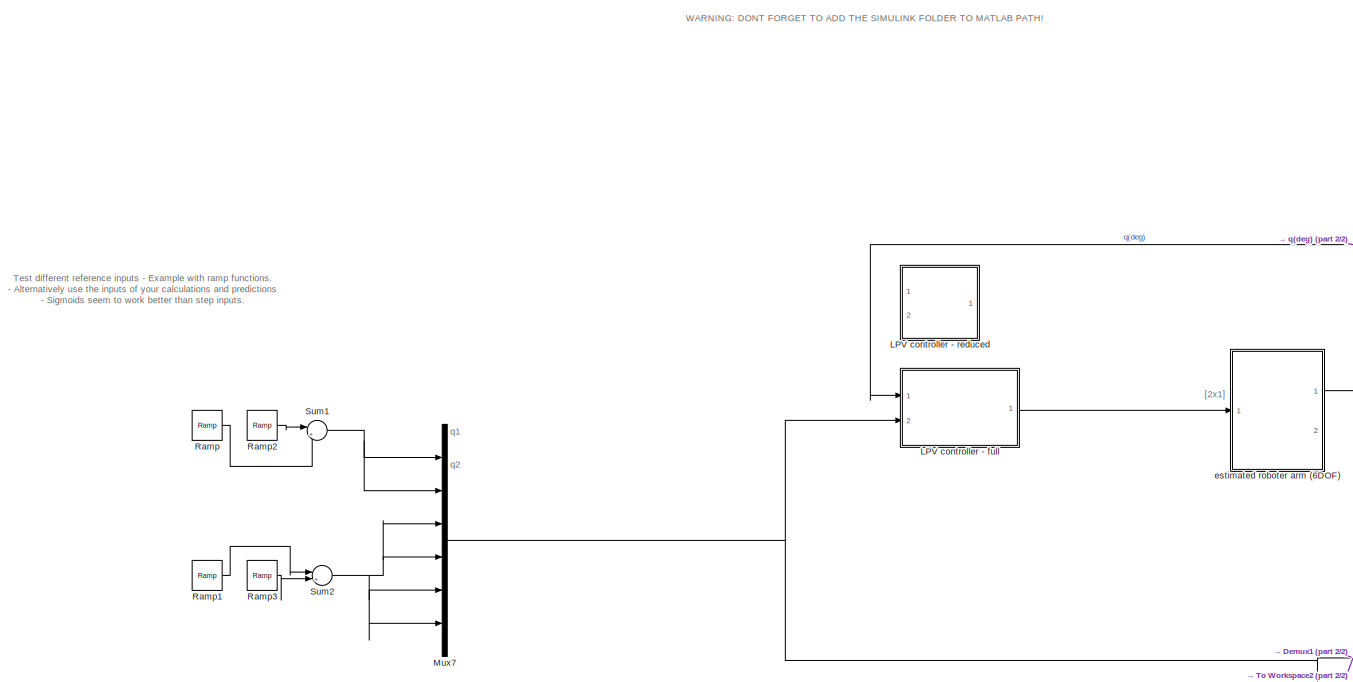
[diagram: root canvas - part 1/2, central region]
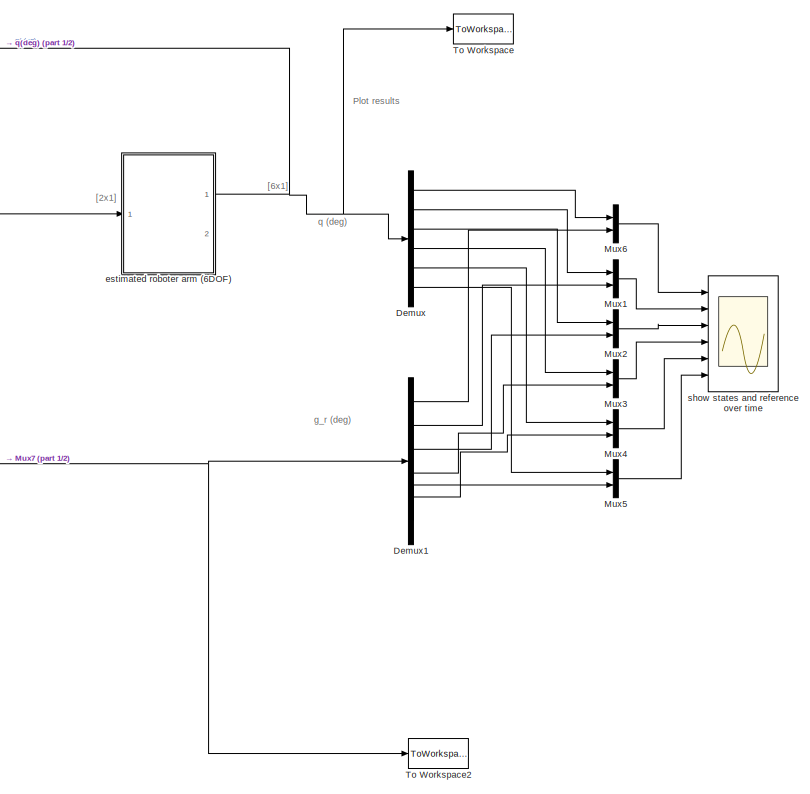
[diagram: root canvas - part 2/2, right side, full height]
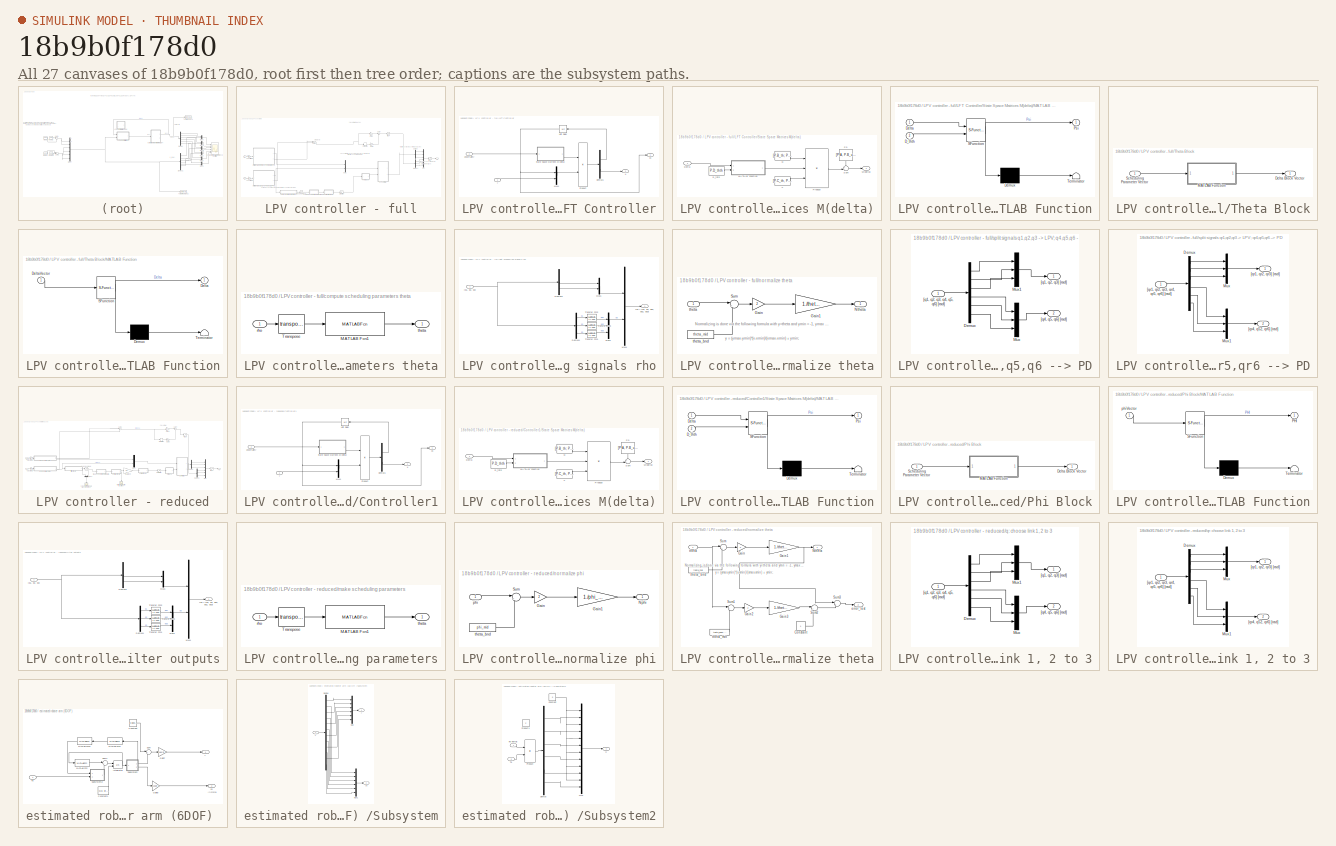
[diagram: thumbnail index - all 27 canvases of the model, root first then tree order]
MODEL slx_18b9b0f178d0
KIND model
CONFIG AbsTol = auto
CONFIG FixedStep = 0.001
CONFIG MaxStep = auto
CONFIG MinStep = auto
CONFIG RelTol = 1e-3
CONFIG SampleTimeConstraint = Unconstrained
CONFIG Solver = ode1
CONFIG SolverMode = Auto
CONFIG SolverName = ode1
CONFIG StartTime = 0.0
CONFIG StopTime = 1.5
BLOCK [Demux] Demux
  DisplayOption = bar
  Outputs = 6
  Ports = [1, 6]
BLOCK [Demux] Demux1
  DisplayOption = bar
  Outputs = 6
  Ports = [1, 6]
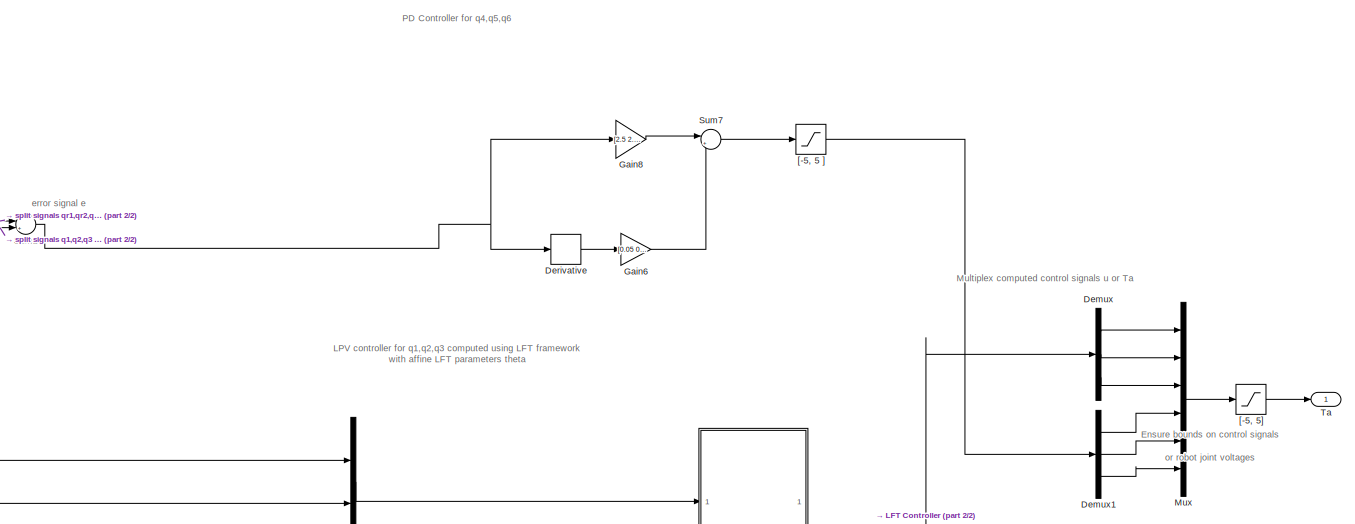
[diagram: LPV controller - full - part 1/2, middle right region]
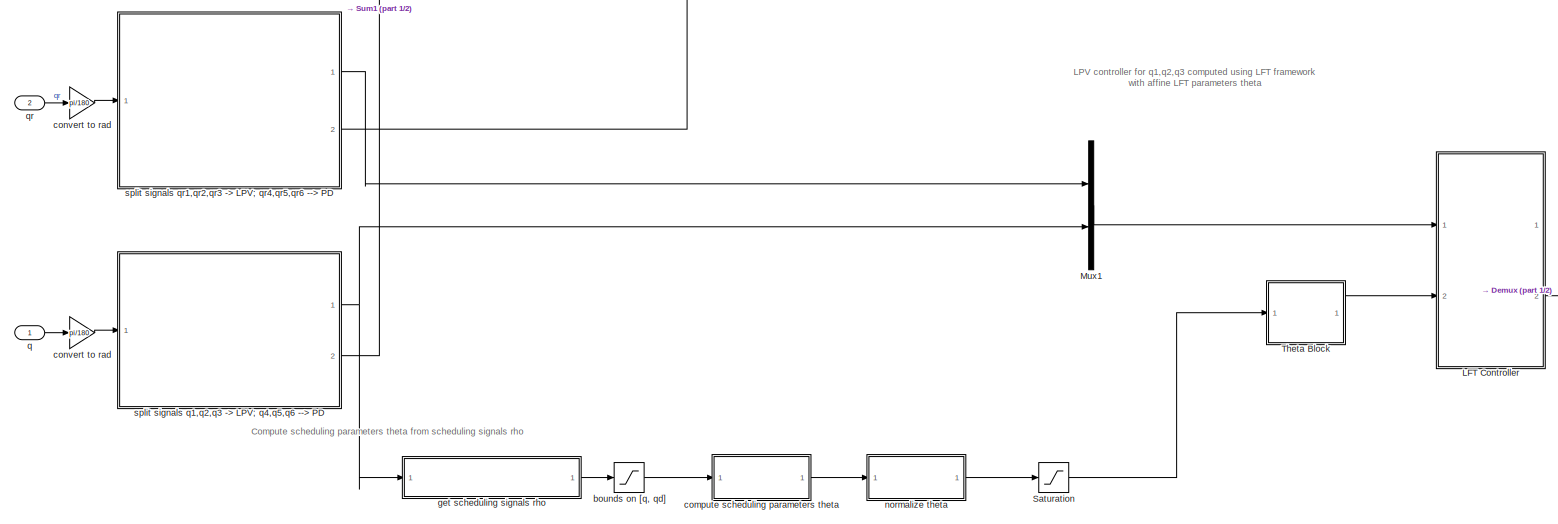
[diagram: LPV controller - full - part 2/2, full width, bottom band]
BLOCK [SubSystem] LPV controller - full
  Ports = [2, 1]
  RequestExecContextInheritance = off
BLOCK [Demux] LPV controller - full/Demux
  DisplayOption = bar
  Outputs = 3
  Ports = [1, 3]
BLOCK [Demux] LPV controller - full/Demux1
  DisplayOption = bar
  Outputs = 3
  Ports = [1, 3]
BLOCK [Derivative] LPV controller - full/Derivative
BLOCK [Gain] LPV controller - full/Gain6
  AttributesFormatString = D gain
  Gain = [0.05 0.05 0.05]*180/pi
  OutDataTypeStr = Inherit: Inherit via internal rule
  ParamDataTypeStr = Inherit: Inherit via internal rule
  SaturateOnIntegerOverflow = off
BLOCK [Gain] LPV controller - full/Gain8
  AttributesFormatString = P gain
  Gain = [2.5 2.5 2.5]*180/pi
  OutDataTypeStr = Inherit: Inherit via internal rule
  ParamDataTypeStr = Inherit: Inherit via internal rule
  SaturateOnIntegerOverflow = off
BLOCK [SubSystem] LPV controller - full/LFT Controller
  Ports = [2, 2]
  RequestExecContextInheritance = off
BLOCK [Demux] LPV controller - full/LFT Controller/Demux1
  DisplayOption = bar
  Outputs = [size(P.A, 1); size(P.C_y, 1)]
  Ports = [1, 2]
BLOCK [Mux] LPV controller - full/LFT Controller/Mux1
  DisplayOption = bar
  Inputs = 2
  Ports = [2, 1]
BLOCK [Product] LPV controller - full/LFT Controller/Product
  InputSameDT = off
  Multiplication = Matrix(*)
  OutDataTypeStr = Inherit: Inherit via internal rule
  Ports = [2, 1]
  SaturateOnIntegerOverflow = off
BLOCK [SubSystem] LPV controller - full/LFT Controller/State Space Matrices M(delta)
  Ports = [1, 1]
  RequestExecContextInheritance = off
BLOCK [Constant] LPV controller - full/LFT Controller/State Space Matrices M(delta)/D_thth
  Value = P.D_thth
BLOCK [Inport] LPV controller - full/LFT Controller/State Space Matrices M(delta)/Delta
  IconDisplay = Port number
BLOCK [Outport] LPV controller - full/LFT Controller/State Space Matrices M(delta)/M(delta)
  IconDisplay = Port number
BLOCK [SubSystem] LPV controller - full/LFT Controller/State Space Matrices M(delta)/MATLAB Function
  ErrorFcn = Stateflow.Translate.translate
  PermitHierarchicalResolution = ExplicitOnly
  Ports = [2, 1]
  RequestExecContextInheritance = off
  SFBlockType = MATLAB Function
  TreatAsAtomicUnit = on
BLOCK [Demux] LPV controller - full/LFT Controller/State Space Matrices M(delta)/MATLAB Function/ Demux 
  Outputs = 1
  Ports = [1, 1]
BLOCK [S-Function] LPV controller - full/LFT Controller/State Space Matrices M(delta)/MATLAB Function/ SFunction 
  EnableBusSupport = on
  FunctionName = sf_sfun
  PortCounts = [2 2]
  Ports = [2, 2]
  Tag = Stateflow S-Function LPV_controller_Simulation_6DOF 1
BLOCK [Terminator] LPV controller - full/LFT Controller/State Space Matrices M(delta)/MATLAB Function/ Terminator 
BLOCK [Inport] LPV controller - full/LFT Controller/State Space Matrices M(delta)/MATLAB Function/D_thth
  IconDisplay = Port number
  Port = 2
BLOCK [Inport] LPV controller - full/LFT Controller/State Space Matrices M(delta)/MATLAB Function/Delta
  IconDisplay = Port number
BLOCK [Outport] LPV controller - full/LFT Controller/State Space Matrices M(delta)/MATLAB Function/Psi
  IconDisplay = Port number
BLOCK [Constant] LPV controller - full/LFT Controller/State Space Matrices M(delta)/P0
  Value = [P.A, P.B_u; P.C_y, P.D_yu];
  VectorParams1D = off
BLOCK [Product] LPV controller - full/LFT Controller/State Space Matrices M(delta)/Product
  InputSameDT = off
  Inputs = 3
  Multiplication = Matrix(*)
  OutDataTypeStr = Inherit: Inherit via internal rule
  Ports = [3, 1]
  SaturateOnIntegerOverflow = off
BLOCK [Constant] LPV controller - full/LFT Controller/State Space Matrices M(delta)/Q
  Value = [P.B_th; P.D_yth]
BLOCK [Sum] LPV controller - full/LFT Controller/State Space Matrices M(delta)/Sum
  IconShape = round
  InputSameDT = off
  Inputs = ++|
  OutDataTypeStr = Inherit: Inherit via internal rule
  Ports = [2, 1]
  SaturateOnIntegerOverflow = off
BLOCK [Constant] LPV controller - full/LFT Controller/State Space Matrices M(delta)/V
  Value = [P.C_th, P.D_thu ]
  VectorParams1D = off
BLOCK [UnitDelay] LPV controller - full/LFT Controller/Unit Delay
  InputProcessing = Elements as channels (sample based)
  SampleTime = -1
BLOCK [Outport] LPV controller - full/LFT Controller/u
  IconDisplay = Port number
  Port = 2
BLOCK [Inport] LPV controller - full/LFT Controller/uncertainty
  IconDisplay = Port number
  Port = 2
BLOCK [Outport] LPV controller - full/LFT Controller/xk
  IconDisplay = Port number
BLOCK [Inport] LPV controller - full/LFT Controller/y
  IconDisplay = Port number
BLOCK [Mux] LPV controller - full/Mux
  DisplayOption = bar
  Inputs = 6
  Ports = [6, 1]
BLOCK [Mux] LPV controller - full/Mux1
  DisplayOption = bar
  Inputs = 2
  Ports = [2, 1]
BLOCK [Saturate] LPV controller - full/Saturation
  InputPortMap = u0
  LowerLimit = -1
  Ports = [1, 1]
  UpperLimit = 1
BLOCK [Sum] LPV controller - full/Sum1
  IconShape = round
  InputSameDT = off
  Inputs = |+-
  OutDataTypeStr = Inherit: Inherit via internal rule
  Ports = [2, 1]
  SaturateOnIntegerOverflow = off
BLOCK [Sum] LPV controller - full/Sum7
  IconShape = round
  InputSameDT = off
  Inputs = |++
  OutDataTypeStr = Inherit: Inherit via internal rule
  Ports = [2, 1]
  SaturateOnIntegerOverflow = off
BLOCK [Outport] LPV controller - full/Ta
  IconDisplay = Port number
BLOCK [SubSystem] LPV controller - full/Theta Block
  Ports = [1, 1]
  RequestExecContextInheritance = off
BLOCK [Outport] LPV controller - full/Theta Block/Delta Block Vector
  IconDisplay = Port number
BLOCK [SubSystem] LPV controller - full/Theta Block/MATLAB Function
  ErrorFcn = Stateflow.Translate.translate
  PermitHierarchicalResolution = ExplicitOnly
  Ports = [1, 1]
  RequestExecContextInheritance = off
  SFBlockType = MATLAB Function
  TreatAsAtomicUnit = on
BLOCK [Demux] LPV controller - full/Theta Block/MATLAB Function/ Demux 
  Outputs = 1
  Ports = [1, 1]
BLOCK [S-Function] LPV controller - full/Theta Block/MATLAB Function/ SFunction 
  EnableBusSupport = on
  FunctionName = sf_sfun
  PortCounts = [1 2]
  Ports = [1, 2]
  Tag = Stateflow S-Function LPV_controller_Simulation_6DOF 3
BLOCK [Terminator] LPV controller - full/Theta Block/MATLAB Function/ Terminator 
BLOCK [Outport] LPV controller - full/Theta Block/MATLAB Function/Delta
  IconDisplay = Port number
BLOCK [Inport] LPV controller - full/Theta Block/MATLAB Function/DeltaVector
  IconDisplay = Port number
BLOCK [Inport] LPV controller - full/Theta Block/Scheduling Parameter Vector
  IconDisplay = Port number
BLOCK [Saturate] LPV controller - full/[-5, 5 ]
  InputPortMap = u0
  LowerLimit = -5
  Ports = [1, 1]
  UpperLimit = 5
BLOCK [Saturate] LPV controller - full/[-5, 5]
  InputPortMap = u0
  LowerLimit = -5
  Ports = [1, 1]
  UpperLimit = 5
BLOCK [Saturate] LPV controller - full/bounds on [q, qd]
  InputPortMap = u0
  LowerLimit = rho_bnd(:, 1)
  Ports = [1, 1]
  UpperLimit = rho_bnd(:, 2)
BLOCK [SubSystem] LPV controller - full/compute scheduling parameters theta
  Ports = [1, 1]
  RequestExecContextInheritance = off
BLOCK [MATLABFcn] LPV controller - full/compute scheduling parameters theta/MATLAB Fcn1
  MATLABFcn = robot3DOFaffineLPVparams(u)
  Output1D = off
  Ports = [1, 1]
BLOCK [Math] LPV controller - full/compute scheduling parameters theta/Transpose
  Operator = transpose
  Ports = [1, 1]
BLOCK [Inport] LPV controller - full/compute scheduling parameters theta/rho
  IconDisplay = Port number
BLOCK [Outport] LPV controller - full/compute scheduling parameters theta/theta
  IconDisplay = Port number
BLOCK [Gain] LPV controller - full/convert to rad
  Gain = pi/180
  OutDataTypeStr = Inherit: Inherit via internal rule
  ParamDataTypeStr = Inherit: Inherit via internal rule
  SaturateOnIntegerOverflow = off
BLOCK [SubSystem] LPV controller - full/get scheduling signals rho
  Ports = [1, 1]
  RequestExecContextInheritance = off
BLOCK [Demux] LPV controller - full/get scheduling signals rho/Demux1
  DisplayOption = bar
  Outputs = 3
  Ports = [1, 3]
BLOCK [Demux] LPV controller - full/get scheduling signals rho/Demux2
  DisplayOption = bar
  Outputs = 3
  Ports = [1, 3]
BLOCK [Mux] LPV controller - full/get scheduling signals rho/Mux1
  DisplayOption = bar
  Inputs = 2
  Ports = [2, 1]
BLOCK [Mux] LPV controller - full/get scheduling signals rho/Mux2
  DisplayOption = bar
  Inputs = 3
  Ports = [3, 1]
BLOCK [Mux] LPV controller - full/get scheduling signals rho/Mux4
  DisplayOption = bar
  Inputs = 2
  Ports = [2, 1]
BLOCK [TransferFcn] LPV controller - full/get scheduling signals rho/Transfer Fcn1
  Denominator = [1 100]
  Numerator = [100 0]
BLOCK [TransferFcn] LPV controller - full/get scheduling signals rho/Transfer Fcn2
  Denominator = [1 100]
  Numerator = [100 0]
BLOCK [TransferFcn] LPV controller - full/get scheduling signals rho/Transfer Fcn3
  Denominator = [1 100]
  Numerator = [100 0]
BLOCK [Inport] LPV controller - full/get scheduling signals rho/[q1, q2, q3]
  IconDisplay = Port number
BLOCK [Outport] LPV controller - full/get scheduling signals rho/rho = [q2, q3, dq1, dq2, dq3]
  IconDisplay = Port number
BLOCK [SubSystem] LPV controller - full/normalize theta
  Ports = [1, 1]
  RequestExecContextInheritance = off
BLOCK [Gain] LPV controller - full/normalize theta/Gain
  Gain = 2
  OutDataTypeStr = Inherit: Inherit via internal rule
  ParamDataTypeStr = Inherit: Inherit via internal rule
  SaturateOnIntegerOverflow = off
BLOCK [Gain] LPV controller - full/normalize theta/Gain1
  Gain = 1./theta_range
  OutDataTypeStr = Inherit: Inherit via internal rule
  ParamDataTypeStr = Inherit: Inherit via internal rule
  SaturateOnIntegerOverflow = off
BLOCK [Outport] LPV controller - full/normalize theta/Ntheta
  IconDisplay = Port number
BLOCK [Sum] LPV controller - full/normalize theta/Sum
  IconShape = round
  InputSameDT = off
  Inputs = |+-
  OutDataTypeStr = Inherit: Inherit via internal rule
  Ports = [2, 1]
  SaturateOnIntegerOverflow = off
BLOCK [Inport] LPV controller - full/normalize theta/theta
  IconDisplay = Port number
BLOCK [Constant] LPV controller - full/normalize theta/theta_bnd
  Value = theta_mid
BLOCK [Inport] LPV controller - full/q
  IconDisplay = Port number
BLOCK [Inport] LPV controller - full/qr
  IconDisplay = Port number
  Port = 2
BLOCK [SubSystem] LPV controller - full/split signals q1,q2,q3 -> LPV; q4,q5,q6 --> PD
  Ports = [1, 2]
  RequestExecContextInheritance = off
BLOCK [Demux] LPV controller - full/split signals q1,q2,q3 -> LPV; q4,q5,q6 --> PD/Demux
  DisplayOption = bar
  Outputs = 6
  Ports = [1, 6]
BLOCK [Mux] LPV controller - full/split signals q1,q2,q3 -> LPV; q4,q5,q6 --> PD/Mux
  DisplayOption = bar
  Inputs = 3
  Ports = [3, 1]
BLOCK [Mux] LPV controller - full/split signals q1,q2,q3 -> LPV; q4,q5,q6 --> PD/Mux1
  DisplayOption = bar
  Inputs = 3
  Ports = [3, 1]
BLOCK [Inport] LPV controller - full/split signals q1,q2,q3 -> LPV; q4,q5,q6 --> PD/[q1, q2, q3, q4, q5, q6] [rad]
  IconDisplay = Port number
BLOCK [Outport] LPV controller - full/split signals q1,q2,q3 -> LPV; q4,q5,q6 --> PD/[q1, q2, q3] [rad]
  IconDisplay = Port number
BLOCK [Outport] LPV controller - full/split signals q1,q2,q3 -> LPV; q4,q5,q6 --> PD/[q4, q5, q6] [rad]
  IconDisplay = Port number
  Port = 2
BLOCK [SubSystem] LPV controller - full/split signals qr1,qr2,qr3 -> LPV; qr4,qr5,qr6 --> PD
  Ports = [1, 2]
  RequestExecContextInheritance = off
BLOCK [Demux] LPV controller - full/split signals qr1,qr2,qr3 -> LPV; qr4,qr5,qr6 --> PD/Demux
  DisplayOption = bar
  Outputs = 6
  Ports = [1, 6]
BLOCK [Mux] LPV controller - full/split signals qr1,qr2,qr3 -> LPV; qr4,qr5,qr6 --> PD/Mux
  DisplayOption = bar
  Inputs = 3
  Ports = [3, 1]
BLOCK [Mux] LPV controller - full/split signals qr1,qr2,qr3 -> LPV; qr4,qr5,qr6 --> PD/Mux1
  DisplayOption = bar
  Inputs = 3
  Ports = [3, 1]
BLOCK [Inport] LPV controller - full/split signals qr1,qr2,qr3 -> LPV; qr4,qr5,qr6 --> PD/[qr1, qr2, qr3, qr4, qr5, qr6] [rad]
  IconDisplay = Port number
BLOCK [Outport] LPV controller - full/split signals qr1,qr2,qr3 -> LPV; qr4,qr5,qr6 --> PD/[qr1, qr2, qr3] [rad]
  IconDisplay = Port number
BLOCK [Outport] LPV controller - full/split signals qr1,qr2,qr3 -> LPV; qr4,qr5,qr6 --> PD/[qr4, q52, qr6] [rad]
  IconDisplay = Port number
  Port = 2
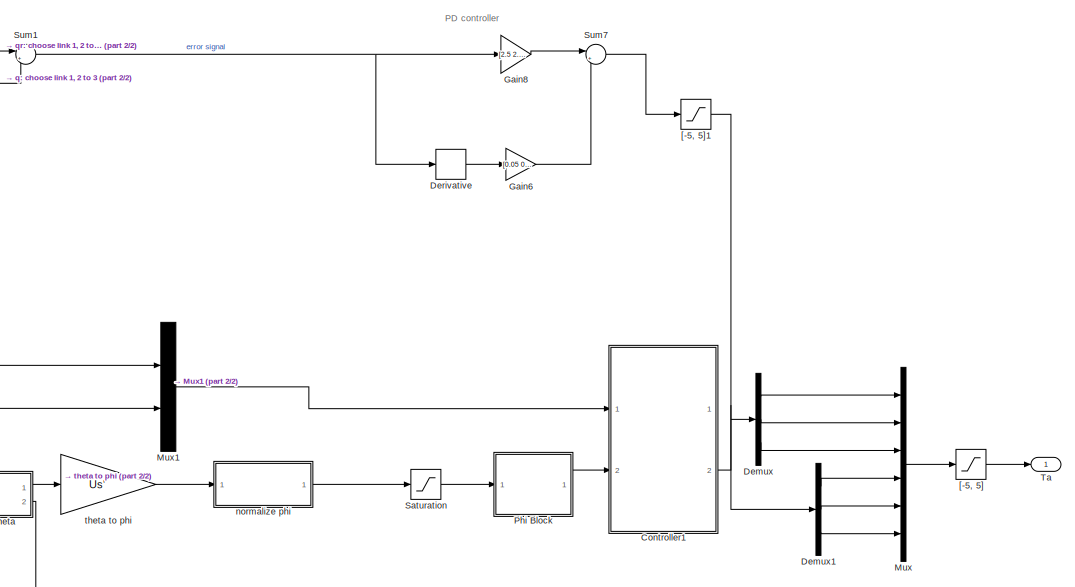
[diagram: LPV controller - reduced - part 1/2, right side, full height]
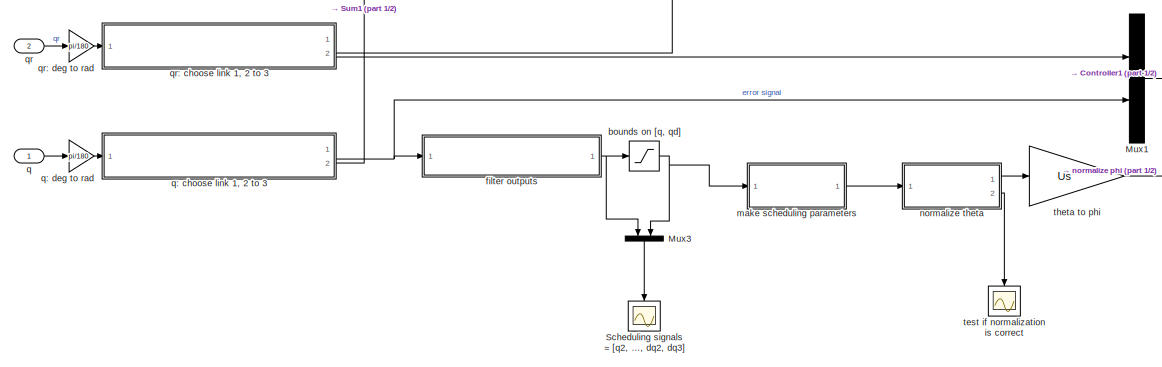
[diagram: LPV controller - reduced - part 2/2, bottom left region]
BLOCK [SubSystem] LPV controller - reduced
  Commented = on
  Ports = [2, 1]
  RequestExecContextInheritance = off
BLOCK [SubSystem] LPV controller - reduced/Controller1
  Ports = [2, 2]
  RequestExecContextInheritance = off
BLOCK [Demux] LPV controller - reduced/Controller1/Demux1
  DisplayOption = bar
  Outputs = [size(P.A, 1); size(P.C_y, 1)]
  Ports = [1, 2]
BLOCK [Mux] LPV controller - reduced/Controller1/Mux1
  DisplayOption = bar
  Inputs = 2
  Ports = [2, 1]
BLOCK [Product] LPV controller - reduced/Controller1/Product
  InputSameDT = off
  Multiplication = Matrix(*)
  OutDataTypeStr = Inherit: Inherit via internal rule
  Ports = [2, 1]
  SaturateOnIntegerOverflow = off
BLOCK [SubSystem] LPV controller - reduced/Controller1/State Space Matrices M(delta)
  Ports = [1, 1]
  RequestExecContextInheritance = off
BLOCK [Constant] LPV controller - reduced/Controller1/State Space Matrices M(delta)/D_thth
  Value = P.D_thth
BLOCK [Inport] LPV controller - reduced/Controller1/State Space Matrices M(delta)/Delta
  IconDisplay = Port number
BLOCK [Outport] LPV controller - reduced/Controller1/State Space Matrices M(delta)/M(delta)
  IconDisplay = Port number
BLOCK [SubSystem] LPV controller - reduced/Controller1/State Space Matrices M(delta)/MATLAB Function
  ErrorFcn = Stateflow.Translate.translate
  PermitHierarchicalResolution = ExplicitOnly
  Ports = [2, 1]
  RequestExecContextInheritance = off
  SFBlockType = MATLAB Function
  TreatAsAtomicUnit = on
BLOCK [Demux] LPV controller - reduced/Controller1/State Space Matrices M(delta)/MATLAB Function/ Demux 
  Outputs = 1
  Ports = [1, 1]
BLOCK [S-Function] LPV controller - reduced/Controller1/State Space Matrices M(delta)/MATLAB Function/ SFunction 
  EnableBusSupport = on
  FunctionName = sf_sfun
  PortCounts = [2 2]
  Ports = [2, 2]
  Tag = Stateflow S-Function LPV_controller_Simulation_6DOF 2
BLOCK [Terminator] LPV controller - reduced/Controller1/State Space Matrices M(delta)/MATLAB Function/ Terminator 
BLOCK [Inport] LPV controller - reduced/Controller1/State Space Matrices M(delta)/MATLAB Function/D_thth
  IconDisplay = Port number
  Port = 2
BLOCK [Inport] LPV controller - reduced/Controller1/State Space Matrices M(delta)/MATLAB Function/Delta
  IconDisplay = Port number
BLOCK [Outport] LPV controller - reduced/Controller1/State Space Matrices M(delta)/MATLAB Function/Psi
  IconDisplay = Port number
BLOCK [Constant] LPV controller - reduced/Controller1/State Space Matrices M(delta)/P0
  Value = [P.A, P.B_u; P.C_y, P.D_yu];
  VectorParams1D = off
BLOCK [Product] LPV controller - reduced/Controller1/State Space Matrices M(delta)/Product
  InputSameDT = off
  Inputs = 3
  Multiplication = Matrix(*)
  OutDataTypeStr = Inherit: Inherit via internal rule
  Ports = [3, 1]
  SaturateOnIntegerOverflow = off
BLOCK [Constant] LPV controller - reduced/Controller1/State Space Matrices M(delta)/Q
  Value = [P.B_th; P.D_yth]
BLOCK [Sum] LPV controller - reduced/Controller1/State Space Matrices M(delta)/Sum
  IconShape = round
  InputSameDT = off
  Inputs = ++|
  OutDataTypeStr = Inherit: Inherit via internal rule
  Ports = [2, 1]
  SaturateOnIntegerOverflow = off
BLOCK [Constant] LPV controller - reduced/Controller1/State Space Matrices M(delta)/V
  Value = [P.C_th, P.D_thu ]
  VectorParams1D = off
BLOCK [UnitDelay] LPV controller - reduced/Controller1/Unit Delay
  InputProcessing = Elements as channels (sample based)
  SampleTime = -1
BLOCK [Outport] LPV controller - reduced/Controller1/u
  IconDisplay = Port number
  Port = 2
BLOCK [Inport] LPV controller - reduced/Controller1/uncertainty
  IconDisplay = Port number
  Port = 2
BLOCK [Outport] LPV controller - reduced/Controller1/xk
  IconDisplay = Port number
BLOCK [Inport] LPV controller - reduced/Controller1/y
  IconDisplay = Port number
BLOCK [Demux] LPV controller - reduced/Demux
  DisplayOption = bar
  Outputs = 3
  Ports = [1, 3]
BLOCK [Demux] LPV controller - reduced/Demux1
  DisplayOption = bar
  Outputs = 3
  Ports = [1, 3]
BLOCK [Derivative] LPV controller - reduced/Derivative
BLOCK [Gain] LPV controller - reduced/Gain6
  AttributesFormatString = D gain
  Gain = [0.05 0.05 0.05]*180/pi
  OutDataTypeStr = Inherit: Inherit via internal rule
  ParamDataTypeStr = Inherit: Inherit via internal rule
  SaturateOnIntegerOverflow = off
BLOCK [Gain] LPV controller - reduced/Gain8
  AttributesFormatString = P gain
  Gain = [2.5 2.5 2.5]*180/pi
  OutDataTypeStr = Inherit: Inherit via internal rule
  ParamDataTypeStr = Inherit: Inherit via internal rule
  SaturateOnIntegerOverflow = off
BLOCK [Mux] LPV controller - reduced/Mux
  DisplayOption = bar
  Inputs = 6
  Ports = [6, 1]
BLOCK [Mux] LPV controller - reduced/Mux1
  DisplayOption = bar
  Inputs = 2
  Ports = [2, 1]
BLOCK [Mux] LPV controller - reduced/Mux3
  DisplayOption = bar
  Inputs = 2
  Ports = [2, 1]
BLOCK [SubSystem] LPV controller - reduced/Phi Block
  Ports = [1, 1]
  RequestExecContextInheritance = off
BLOCK [Outport] LPV controller - reduced/Phi Block/Delta Block Vector
  IconDisplay = Port number
BLOCK [SubSystem] LPV controller - reduced/Phi Block/MATLAB Function
  ErrorFcn = Stateflow.Translate.translate
  PermitHierarchicalResolution = ExplicitOnly
  Ports = [1, 1]
  RequestExecContextInheritance = off
  SFBlockType = MATLAB Function
  TreatAsAtomicUnit = on
BLOCK [Demux] LPV controller - reduced/Phi Block/MATLAB Function/ Demux 
  Outputs = 1
  Ports = [1, 1]
BLOCK [S-Function] LPV controller - reduced/Phi Block/MATLAB Function/ SFunction 
  EnableBusSupport = on
  FunctionName = sf_sfun
  PortCounts = [1 2]
  Ports = [1, 2]
  Tag = Stateflow S-Function LPV_controller_Simulation_6DOF 4
BLOCK [Terminator] LPV controller - reduced/Phi Block/MATLAB Function/ Terminator 
BLOCK [Outport] LPV controller - reduced/Phi Block/MATLAB Function/PHI
  IconDisplay = Port number
BLOCK [Inport] LPV controller - reduced/Phi Block/MATLAB Function/phiVector
  IconDisplay = Port number
BLOCK [Inport] LPV controller - reduced/Phi Block/Scheduling Parameter Vector
  IconDisplay = Port number
BLOCK [Saturate] LPV controller - reduced/Saturation
  InputPortMap = u0
  LowerLimit = -1
  Ports = [1, 1]
  UpperLimit = 1
BLOCK [Scope] LPV controller - reduced/Scheduling signals = [q2, q3t, dq1, dq2, dq3]
  DataFormat = StructureWithTime
  Floating = off
  LimitDataPoints = off
  NumInputPorts = 1
  Ports = [1]
  SampleTime = 0
  SaveName = ScopeData2
  ShowLegends = on
  YMax = 1.5
  YMin = -1.75
BLOCK [Sum] LPV controller - reduced/Sum1
  IconShape = round
  InputSameDT = off
  Inputs = |+-
  OutDataTypeStr = Inherit: Inherit via internal rule
  Ports = [2, 1]
  SaturateOnIntegerOverflow = off
BLOCK [Sum] LPV controller - reduced/Sum7
  IconShape = round
  InputSameDT = off
  Inputs = |++
  OutDataTypeStr = Inherit: Inherit via internal rule
  Ports = [2, 1]
  SaturateOnIntegerOverflow = off
BLOCK [Outport] LPV controller - reduced/Ta
  IconDisplay = Port number
BLOCK [Saturate] LPV controller - reduced/[-5, 5]
  InputPortMap = u0
  LowerLimit = -5
  Ports = [1, 1]
  UpperLimit = 5
BLOCK [Saturate] LPV controller - reduced/[-5, 5]1
  InputPortMap = u0
  LowerLimit = -5
  Ports = [1, 1]
  UpperLimit = 5
BLOCK [Saturate] LPV controller - reduced/bounds on [q, qd]
  InputPortMap = u0
  LowerLimit = rho_bnd(:, 1)
  Ports = [1, 1]
  UpperLimit = rho_bnd(:, 2)
BLOCK [SubSystem] LPV controller - reduced/filter outputs
  Ports = [1, 1]
  RequestExecContextInheritance = off
BLOCK [Demux] LPV controller - reduced/filter outputs/Demux1
  DisplayOption = bar
  Outputs = 3
  Ports = [1, 3]
BLOCK [Demux] LPV controller - reduced/filter outputs/Demux2
  DisplayOption = bar
  Outputs = 3
  Ports = [1, 3]
BLOCK [Mux] LPV controller - reduced/filter outputs/Mux1
  DisplayOption = bar
  Inputs = 2
  Ports = [2, 1]
BLOCK [Mux] LPV controller - reduced/filter outputs/Mux2
  DisplayOption = bar
  Inputs = 3
  Ports = [3, 1]
BLOCK [Mux] LPV controller - reduced/filter outputs/Mux4
  DisplayOption = bar
  Inputs = 2
  Ports = [2, 1]
BLOCK [TransferFcn] LPV controller - reduced/filter outputs/Transfer Fcn1
  Denominator = [1 100]
  Numerator = [100 0]
BLOCK [TransferFcn] LPV controller - reduced/filter outputs/Transfer Fcn2
  Denominator = [1 100]
  Numerator = [100 0]
BLOCK [TransferFcn] LPV controller - reduced/filter outputs/Transfer Fcn3
  Denominator = [1 100]
  Numerator = [100 0]
BLOCK [Inport] LPV controller - reduced/filter outputs/[q1, q2, q3]
  IconDisplay = Port number
BLOCK [Outport] LPV controller - reduced/filter outputs/rho = [q2, q3, dq1, dq2, dq3]
  IconDisplay = Port number
BLOCK [SubSystem] LPV controller - reduced/make scheduling parameters
  Ports = [1, 1]
  RequestExecContextInheritance = off
BLOCK [MATLABFcn] LPV controller - reduced/make scheduling parameters/MATLAB Fcn1
  MATLABFcn = robot3DOFaffineLPVparams(u)
  Output1D = off
  Ports = [1, 1]
BLOCK [Math] LPV controller - reduced/make scheduling parameters/Transpose
  Operator = transpose
  Ports = [1, 1]
BLOCK [Inport] LPV controller - reduced/make scheduling parameters/rho
  IconDisplay = Port number
BLOCK [Outport] LPV controller - reduced/make scheduling parameters/theta
  IconDisplay = Port number
BLOCK [SubSystem] LPV controller - reduced/normalize phi
  Ports = [1, 1]
  RequestExecContextInheritance = off
BLOCK [Gain] LPV controller - reduced/normalize phi/Gain
  Gain = 2
  OutDataTypeStr = Inherit: Inherit via internal rule
  ParamDataTypeStr = Inherit: Inherit via internal rule
  SaturateOnIntegerOverflow = off
BLOCK [Gain] LPV controller - reduced/normalize phi/Gain1
  Gain = 1./phi_range
  OutDataTypeStr = Inherit: Inherit via internal rule
  ParamDataTypeStr = Inherit: Inherit via internal rule
  SaturateOnIntegerOverflow = off
BLOCK [Outport] LPV controller - reduced/normalize phi/Nphi
  IconDisplay = Port number
BLOCK [Sum] LPV controller - reduced/normalize phi/Sum
  IconShape = round
  InputSameDT = off
  Inputs = |+-
  OutDataTypeStr = Inherit: Inherit via internal rule
  Ports = [2, 1]
  SaturateOnIntegerOverflow = off
BLOCK [Inport] LPV controller - reduced/normalize phi/phi
  IconDisplay = Port number
BLOCK [Constant] LPV controller - reduced/normalize phi/theta_bnd
  Value = phi_mid
BLOCK [SubSystem] LPV controller - reduced/normalize theta
  Ports = [1, 2]
  RequestExecContextInheritance = off
BLOCK [Constant] LPV controller - reduced/normalize theta/Constant
BLOCK [Gain] LPV controller - reduced/normalize theta/Gain
  Gain = 2
  OutDataTypeStr = Inherit: Inherit via internal rule
  ParamDataTypeStr = Inherit: Inherit via internal rule
  SaturateOnIntegerOverflow = off
BLOCK [Gain] LPV controller - reduced/normalize theta/Gain1
  Gain = 1./theta_range
  OutDataTypeStr = Inherit: Inherit via internal rule
  ParamDataTypeStr = Inherit: Inherit via internal rule
  SaturateOnIntegerOverflow = off
BLOCK [Gain] LPV controller - reduced/normalize theta/Gain2
  Gain = 2
  OutDataTypeStr = Inherit: Inherit via internal rule
  ParamDataTypeStr = Inherit: Inherit via internal rule
  SaturateOnIntegerOverflow = off
BLOCK [Gain] LPV controller - reduced/normalize theta/Gain3
  Gain = 1./theta_range
  OutDataTypeStr = Inherit: Inherit via internal rule
  ParamDataTypeStr = Inherit: Inherit via internal rule
  SaturateOnIntegerOverflow = off
BLOCK [Outport] LPV controller - reduced/normalize theta/Ntheta
  IconDisplay = Port number
BLOCK [Sum] LPV controller - reduced/normalize theta/Sum
  IconShape = round
  InputSameDT = off
  Inputs = |+-
  OutDataTypeStr = Inherit: Inherit via internal rule
  Ports = [2, 1]
  SaturateOnIntegerOverflow = off
BLOCK [Sum] LPV controller - reduced/normalize theta/Sum1
  IconShape = round
  InputSameDT = off
  Inputs = |+-
  OutDataTypeStr = Inherit: Inherit via internal rule
  Ports = [2, 1]
  SaturateOnIntegerOverflow = off
BLOCK [Sum] LPV controller - reduced/normalize theta/Sum2
  IconShape = round
  InputSameDT = off
  Inputs = |+-
  OutDataTypeStr = Inherit: Inherit via internal rule
  Ports = [2, 1]
  SaturateOnIntegerOverflow = off
BLOCK [Sum] LPV controller - reduced/normalize theta/Sum3
  IconShape = round
  InputSameDT = off
  Inputs = |+-
  OutDataTypeStr = Inherit: Inherit via internal rule
  Ports = [2, 1]
  SaturateOnIntegerOverflow = off
BLOCK [Outport] LPV controller - reduced/normalize theta/error_test
  IconDisplay = Port number
  Port = 2
BLOCK [Inport] LPV controller - reduced/normalize theta/theta
  IconDisplay = Port number
BLOCK [Constant] LPV controller - reduced/normalize theta/theta_bnd
  Value = theta_mid
BLOCK [Constant] LPV controller - reduced/normalize theta/theta_min
  Value = theta_bnd(:,1)
BLOCK [Inport] LPV controller - reduced/q
  IconDisplay = Port number
BLOCK [SubSystem] LPV controller - reduced/q: choose link 1, 2 to 3
  Ports = [1, 2]
  RequestExecContextInheritance = off
BLOCK [Demux] LPV controller - reduced/q: choose link 1, 2 to 3/Demux
  DisplayOption = bar
  Outputs = 6
  Ports = [1, 6]
BLOCK [Mux] LPV controller - reduced/q: choose link 1, 2 to 3/Mux
  DisplayOption = bar
  Inputs = 3
  Ports = [3, 1]
BLOCK [Mux] LPV controller - reduced/q: choose link 1, 2 to 3/Mux1
  DisplayOption = bar
  Inputs = 3
  Ports = [3, 1]
BLOCK [Inport] LPV controller - reduced/q: choose link 1, 2 to 3/[q1, q2, q3, q4, q5, q6] [rad]
  IconDisplay = Port number
BLOCK [Outport] LPV controller - reduced/q: choose link 1, 2 to 3/[q1, q2, q3] [rad]
  IconDisplay = Port number
BLOCK [Outport] LPV controller - reduced/q: choose link 1, 2 to 3/[q4, q5, q6] [rad]
  IconDisplay = Port number
  Port = 2
BLOCK [Gain] LPV controller - reduced/q: deg to rad
  Gain = pi/180
  OutDataTypeStr = Inherit: Inherit via internal rule
  ParamDataTypeStr = Inherit: Inherit via internal rule
  SaturateOnIntegerOverflow = off
BLOCK [Inport] LPV controller - reduced/qr
  IconDisplay = Port number
  Port = 2
BLOCK [SubSystem] LPV controller - reduced/qr: choose link 1, 2 to 3
  Ports = [1, 2]
  RequestExecContextInheritance = off
BLOCK [Demux] LPV controller - reduced/qr: choose link 1, 2 to 3/Demux
  DisplayOption = bar
  Outputs = 6
  Ports = [1, 6]
BLOCK [Mux] LPV controller - reduced/qr: choose link 1, 2 to 3/Mux
  DisplayOption = bar
  Inputs = 3
  Ports = [3, 1]
BLOCK [Mux] LPV controller - reduced/qr: choose link 1, 2 to 3/Mux1
  DisplayOption = bar
  Inputs = 3
  Ports = [3, 1]
BLOCK [Inport] LPV controller - reduced/qr: choose link 1, 2 to 3/[qr1, qr2, qr3, qr4, qr5, qr6] [rad]
  IconDisplay = Port number
BLOCK [Outport] LPV controller - reduced/qr: choose link 1, 2 to 3/[qr1, qr2, qr3] [rad]
  IconDisplay = Port number
BLOCK [Outport] LPV controller - reduced/qr: choose link 1, 2 to 3/[qr4, q52, qr6] [rad]
  IconDisplay = Port number
  Port = 2
BLOCK [Gain] LPV controller - reduced/qr: deg to rad
  Gain = pi/180
  OutDataTypeStr = Inherit: Inherit via internal rule
  ParamDataTypeStr = Inherit: Inherit via internal rule
  SaturateOnIntegerOverflow = off
BLOCK [Scope] LPV controller - reduced/test if normalization is correct
  DataFormat = StructureWithTime
  Floating = off
  LegendLocations = 0.70367     0.62966     0.24671       0.301
  LimitDataPoints = off
  NumInputPorts = 1
  Ports = [1]
  SampleTime = 0
  ShowLegends = on
  YMax = 1.5
  YMin = -1.75
BLOCK [Gain] LPV controller - reduced/theta to phi
  Gain = Us'
  Multiplication = Matrix(K*u) (u vector)
  OutDataTypeStr = Inherit: Inherit via internal rule
  ParamDataTypeStr = Inherit: Inherit via internal rule
  SaturateOnIntegerOverflow = off
BLOCK [Mux] Mux1
  DisplayOption = bar
  Inputs = 2
  Ports = [2, 1]
BLOCK [Mux] Mux2
  DisplayOption = bar
  Inputs = 2
  Ports = [2, 1]
BLOCK [Mux] Mux3
  DisplayOption = bar
  Inputs = 2
  Ports = [2, 1]
BLOCK [Mux] Mux4
  DisplayOption = bar
  Inputs = 2
  Ports = [2, 1]
BLOCK [Mux] Mux5
  DisplayOption = bar
  Inputs = 2
  Ports = [2, 1]
BLOCK [Mux] Mux6
  DisplayOption = bar
  Inputs = 2
  Ports = [2, 1]
BLOCK [Mux] Mux7
  DisplayOption = bar
  Inputs = 6
  Ports = [6, 1]
BLOCK [Reference] Ramp  REF=simulink/Sources/Ramp
  Ports = [0, 1]
  SourceBlock = simulink/Sources/Ramp
  SourceType = Ramp
  VectorParams1D = on
  X0 = 0
  slope = -80
  start = 0.1
BLOCK [Reference] Ramp1  REF=simulink/Sources/Ramp
  Ports = [0, 1]
  SourceBlock = simulink/Sources/Ramp
  SourceType = Ramp
  VectorParams1D = on
  X0 = 0
  slope = 60
  start = 0.1
BLOCK [Reference] Ramp2  REF=simulink/Sources/Ramp
  Ports = [0, 1]
  SourceBlock = simulink/Sources/Ramp
  SourceType = Ramp
  VectorParams1D = on
  X0 = 0
  slope = 80
  start = 0.6
BLOCK [Reference] Ramp3  REF=simulink/Sources/Ramp
  Ports = [0, 1]
  SourceBlock = simulink/Sources/Ramp
  SourceType = Ramp
  VectorParams1D = on
  X0 = 0
  slope = -60
  start = 1
BLOCK [Sum] Sum1
  IconShape = round
  InputSameDT = off
  Inputs = |++
  OutDataTypeStr = Inherit: Inherit via internal rule
  Ports = [2, 1]
  SaturateOnIntegerOverflow = off
BLOCK [Sum] Sum2
  IconShape = round
  InputSameDT = off
  Inputs = |++
  OutDataTypeStr = Inherit: Inherit via internal rule
  Ports = [2, 1]
  SaturateOnIntegerOverflow = off
BLOCK [ToWorkspace] To Workspace
  FixptAsFi = on
  MaxDataPoints = inf
  Ports = [1]
  SampleTime = -1
  Save2DSignal = 3-D array (concatenate along third dimension)
  SaveFormat = Timeseries
  VariableName = q_data_lpv
BLOCK [ToWorkspace] To Workspace2
  FixptAsFi = on
  MaxDataPoints = inf
  Ports = [1]
  SampleTime = -1
  Save2DSignal = 3-D array (concatenate along third dimension)
  SaveFormat = Timeseries
  VariableName = qr_data
BLOCK [SubSystem] estimated roboter arm (6DOF) 
  Ports = [1, 2]
  RequestExecContextInheritance = off
BLOCK [Constant] estimated roboter arm (6DOF) /Constant
  Value = [0;-pi/2;pi;0;0;0]
BLOCK [Constant] estimated roboter arm (6DOF) /Constant1
  AttributesFormatString = initial states, ready position
  Value = [0;0;    pi/2;0;    -pi;0;    0;0;    0;0;    0;0]
BLOCK [Gain] estimated roboter arm (6DOF) /Gain7
  Gain = 180/pi
  OutDataTypeStr = Inherit: Inherit via internal rule
  ParamDataTypeStr = Inherit: Inherit via internal rule
  SaturateOnIntegerOverflow = off
BLOCK [Gain] estimated roboter arm (6DOF) /Gain8
  Gain = 180/pi
  OutDataTypeStr = Inherit: Inherit via internal rule
  ParamDataTypeStr = Inherit: Inherit via internal rule
  SaturateOnIntegerOverflow = off
BLOCK [Integrator] estimated roboter arm (6DOF) /Integrator
  InitialConditionSource = external
  Ports = [2, 1]
BLOCK [MATLABFcn] estimated roboter arm (6DOF) /MATLAB Fcn
  MATLABFcn = Xdsim(u)
  Ports = [1, 1]
BLOCK [MATLABFcn] estimated roboter arm (6DOF) /MATLAB Fcn1
  MATLABFcn = inert(u)
  Output1D = off
  Ports = [1, 1]
BLOCK [MATLABFcn] estimated roboter arm (6DOF) /MATLAB Fcn2
  MATLABFcn = inv(u)
  Output1D = off
  Ports = [1, 1]
BLOCK [SubSystem] estimated roboter arm (6DOF) /Subsystem
  Ports = [1, 2]
  RequestExecContextInheritance = off
BLOCK [Demux] estimated roboter arm (6DOF) /Subsystem/Demux
  DisplayOption = bar
  Outputs = 12
  Ports = [1, 12]
BLOCK [Mux] estimated roboter arm (6DOF) /Subsystem/Mux
  DisplayOption = bar
  Inputs = 6
  Ports = [6, 1]
BLOCK [Mux] estimated roboter arm (6DOF) /Subsystem/Mux1
  DisplayOption = bar
  Inputs = 6
  Ports = [6, 1]
BLOCK [Inport] estimated roboter arm (6DOF) /Subsystem/X
  IconDisplay = Port number
BLOCK [Outport] estimated roboter arm (6DOF) /Subsystem/y
  IconDisplay = Port number
BLOCK [Outport] estimated roboter arm (6DOF) /Subsystem/yd
  IconDisplay = Port number
  Port = 2
BLOCK [SubSystem] estimated roboter arm (6DOF) /Subsystem2
  Ports = [2, 1]
  RequestExecContextInheritance = off
BLOCK [Constant] estimated roboter arm (6DOF) /Subsystem2/Constant
  Value = 0
BLOCK [Demux] estimated roboter arm (6DOF) /Subsystem2/Demux
  DisplayOption = bar
  Outputs = 6
  Ports = [1, 6]
BLOCK [Mux] estimated roboter arm (6DOF) /Subsystem2/Mux
  DisplayOption = bar
  Inputs = 12
  Ports = [12, 1]
BLOCK [Product] estimated roboter arm (6DOF) /Subsystem2/Product
  InputSameDT = off
  Multiplication = Matrix(*)
  OutDataTypeStr = Inherit: Inherit via internal rule
  Ports = [2, 1]
  SaturateOnIntegerOverflow = off
BLOCK [Product] estimated roboter arm (6DOF) /Subsystem2/Product1
  InputSameDT = off
  Multiplication = Matrix(*)
  OutDataTypeStr = Inherit: Inherit via internal rule
  Ports = [2, 1]
  RndMeth = Floor
  SaturateOnIntegerOverflow = off
BLOCK [Inport] estimated roboter arm (6DOF) /Subsystem2/Ta
  IconDisplay = Port number
  Port = 2
BLOCK [Outport] estimated roboter arm (6DOF) /Subsystem2/U 
  IconDisplay = Port number
BLOCK [Inport] estimated roboter arm (6DOF) /Subsystem2/inv inertia
  IconDisplay = Port number
BLOCK [Sum] estimated roboter arm (6DOF) /Sum
  IconShape = round
  InputSameDT = off
  Inputs = |++
  OutDataTypeStr = Inherit: Inherit via internal rule
  Ports = [2, 1]
  SaturateOnIntegerOverflow = off
BLOCK [Sum] estimated roboter arm (6DOF) /Sum1
  IconShape = round
  InputSameDT = off
  Inputs = |++
  OutDataTypeStr = Inherit: Inherit via internal rule
  Ports = [2, 1]
  SaturateOnIntegerOverflow = off
BLOCK [Inport] estimated roboter arm (6DOF) /Ta
  IconDisplay = Port number
BLOCK [Outport] estimated roboter arm (6DOF) /y
  IconDisplay = Port number
BLOCK [Outport] estimated roboter arm (6DOF) /yd
  IconDisplay = Port number
  Port = 2
BLOCK [Scope] show states and reference over time
  Floating = off
  NumInputPorts = 6
  Ports = [6]
  YMax = -10~-10~55~55~55~55
  YMin = -45~-45~10~5~5~5
ANNOTATION (root): WARNING: DONT FORGET TO ADD THE SIMULINK FOLDER TO MATLAB PATH!
ANNOTATION (root): Plot results
ANNOTATION (root): Test different reference inputs - Example with ramp functions. - Alternatively use the inputs of your calculations and predictions - Sigmoids seem to work better than step inputs.
ANNOTATION (root): [2x1]
ANNOTATION (root): [6x1]
ANNOTATION (root): g_r (deg)
ANNOTATION (root): q (deg)
ANNOTATION (root): q1 q2 q3 q4 q5 q6
ANNOTATION LPV controller - full: Compute scheduling parameters theta from scheduling signals rho
ANNOTATION LPV controller - full: Ensure bounds on control signals or robot joint voltages
ANNOTATION LPV controller - full: LPV controller for q1,q2,q3 computed using LFT framework with affine LFT parameters theta
ANNOTATION LPV controller - full: Multiplex computed control signals u or Ta
ANNOTATION LPV controller - full: PD Controller for q4,q5,q6
ANNOTATION LPV controller - full: error signal e
ANNOTATION LPV controller - full/normalize theta: Normalizing is done via the following formula with y=theta and ymin = -1, ymax = 1 y = (ymax-ymin)*(x-xmin)/(xmax-xmin) + ymin;
ANNOTATION LPV controller - reduced: PD controller
ANNOTATION LPV controller - reduced/normalize theta: Normalizing is done via the following formula with y=theta and ymin = -1, ymax = 1 y = (ymax-ymin)*(x-xmin)/(xmax-xmin) + ymin;
ANNOTATION estimated roboter arm (6DOF) : (Optional)
LINE Demux1:1 -> Mux6:2
LINE Demux1:2 -> Mux1:2
LINE Demux1:3 -> Mux2:2
LINE Demux1:4 -> Mux3:2
LINE Demux1:5 -> Mux4:2
LINE Demux1:6 -> Mux5:2
LINE Demux:1 -> Mux6:1
LINE Demux:2 -> Mux1:1
LINE Demux:3 -> Mux2:1
LINE Demux:4 -> Mux3:1
LINE Demux:5 -> Mux4:1
LINE Demux:6 -> Mux5:1
LINE LPV controller - full/Demux1:1 -> LPV controller - full/Mux:4
LINE LPV controller - full/Demux1:2 -> LPV controller - full/Mux:5
LINE LPV controller - full/Demux1:3 -> LPV controller - full/Mux:6
LINE LPV controller - full/Demux:1 -> LPV controller - full/Mux:1
LINE LPV controller - full/Demux:2 -> LPV controller - full/Mux:2
LINE LPV controller - full/Demux:3 -> LPV controller - full/Mux:3
LINE LPV controller - full/Derivative:1 -> LPV controller - full/Gain6:1
LINE LPV controller - full/Gain6:1 -> LPV controller - full/Sum7:2
LINE LPV controller - full/Gain8:1 -> LPV controller - full/Sum7:1
LINE LPV controller - full/LFT Controller/Demux1:1 -> LPV controller - full/LFT Controller/Unit Delay:1
LINE LPV controller - full/LFT Controller/Demux1:2 -> LPV controller - full/LFT Controller/u:1
LINE LPV controller - full/LFT Controller/Mux1:1 -> LPV controller - full/LFT Controller/Product:2
LINE LPV controller - full/LFT Controller/Product:1 -> LPV controller - full/LFT Controller/Demux1:1
LINE LPV controller - full/LFT Controller/State Space Matrices M(delta)/D_thth:1 -> LPV controller - full/LFT Controller/State Space Matrices M(delta)/MATLAB Function:2
LINE LPV controller - full/LFT Controller/State Space Matrices M(delta)/Delta:1 -> LPV controller - full/LFT Controller/State Space Matrices M(delta)/MATLAB Function:1
LINE LPV controller - full/LFT Controller/State Space Matrices M(delta)/MATLAB Function:1 -> LPV controller - full/LFT Controller/State Space Matrices M(delta)/Product:2
LINE LPV controller - full/LFT Controller/State Space Matrices M(delta)/P0:1 -> LPV controller - full/LFT Controller/State Space Matrices M(delta)/Sum:1
LINE LPV controller - full/LFT Controller/State Space Matrices M(delta)/Product:1 -> LPV controller - full/LFT Controller/State Space Matrices M(delta)/Sum:2
LINE LPV controller - full/LFT Controller/State Space Matrices M(delta)/Q:1 -> LPV controller - full/LFT Controller/State Space Matrices M(delta)/Product:1
LINE LPV controller - full/LFT Controller/State Space Matrices M(delta)/Sum:1 -> LPV controller - full/LFT Controller/State Space Matrices M(delta)/M(delta):1
LINE LPV controller - full/LFT Controller/State Space Matrices M(delta)/V:1 -> LPV controller - full/LFT Controller/State Space Matrices M(delta)/Product:3
LINE LPV controller - full/LFT Controller/State Space Matrices M(delta):1 -> LPV controller - full/LFT Controller/Product:1
NET LPV controller - full/LFT Controller/Unit Delay:1 -> LPV controller - full/LFT Controller/Mux1:1, LPV controller - full/LFT Controller/xk:1
LINE LPV controller - full/LFT Controller/uncertainty:1 -> LPV controller - full/LFT Controller/State Space Matrices M(delta):1
LINE LPV controller - full/LFT Controller/y:1 -> LPV controller - full/LFT Controller/Mux1:2
LINE LPV controller - full/LFT Controller:2 -> LPV controller - full/Demux:1
LINE LPV controller - full/Mux1:1 -> LPV controller - full/LFT Controller:1
LINE LPV controller - full/Mux:1 -> LPV controller - full/[-5, 5]:1
LINE LPV controller - full/Saturation:1 -> LPV controller - full/Theta Block:1
NET LPV controller - full/Sum1:1 -> LPV controller - full/Derivative:1, LPV controller - full/Gain8:1
LINE LPV controller - full/Sum7:1 -> LPV controller - full/[-5, 5 ]:1
LINE LPV controller - full/Theta Block/MATLAB Function:1 -> LPV controller - full/Theta Block/Delta Block Vector:1
LINE LPV controller - full/Theta Block/Scheduling Parameter Vector:1 -> LPV controller - full/Theta Block/MATLAB Function:1
LINE LPV controller - full/Theta Block:1 -> LPV controller - full/LFT Controller:2
LINE LPV controller - full/[-5, 5 ]:1 -> LPV controller - full/Demux1:1
LINE LPV controller - full/[-5, 5]:1 -> LPV controller - full/Ta:1
LINE LPV controller - full/bounds on [q, qd]:1 -> LPV controller - full/compute scheduling parameters theta:1
LINE LPV controller - full/compute scheduling parameters theta/MATLAB Fcn1:1 -> LPV controller - full/compute scheduling parameters theta/theta:1
LINE LPV controller - full/compute scheduling parameters theta/Transpose:1 -> LPV controller - full/compute scheduling parameters theta/MATLAB Fcn1:1
LINE LPV controller - full/compute scheduling parameters theta/rho:1 -> LPV controller - full/compute scheduling parameters theta/Transpose:1
LINE LPV controller - full/compute scheduling parameters theta:1 -> LPV controller - full/normalize theta:1
NET LPV controller - full/convert to rad:1 -> LPV controller - full/split signals q1,q2,q3 -> LPV; q4,q5,q6 --> PD:1, LPV controller - full/split signals qr1,qr2,qr3 -> LPV; qr4,qr5,qr6 --> PD:1
LINE LPV controller - full/get scheduling signals rho/Demux1:1 -> LPV controller - full/get scheduling signals rho/Transfer Fcn2:1
LINE LPV controller - full/get scheduling signals rho/Demux1:2 -> LPV controller - full/get scheduling signals rho/Transfer Fcn3:1
LINE LPV controller - full/get scheduling signals rho/Demux1:3 -> LPV controller - full/get scheduling signals rho/Transfer Fcn1:1
LINE LPV controller - full/get scheduling signals rho/Demux2:2 -> LPV controller - full/get scheduling signals rho/Mux1:1
LINE LPV controller - full/get scheduling signals rho/Demux2:3 -> LPV controller - full/get scheduling signals rho/Mux1:2
LINE LPV controller - full/get scheduling signals rho/Mux1:1 -> LPV controller - full/get scheduling signals rho/Mux4:1
LINE LPV controller - full/get scheduling signals rho/Mux2:1 -> LPV controller - full/get scheduling signals rho/Mux4:2
LINE LPV controller - full/get scheduling signals rho/Mux4:1 -> LPV controller - full/get scheduling signals rho/rho = [q2, q3, dq1, dq2, dq3]:1
LINE LPV controller - full/get scheduling signals rho/Transfer Fcn1:1 -> LPV controller - full/get scheduling signals rho/Mux2:3
LINE LPV controller - full/get scheduling signals rho/Transfer Fcn2:1 -> LPV controller - full/get scheduling signals rho/Mux2:1
LINE LPV controller - full/get scheduling signals rho/Transfer Fcn3:1 -> LPV controller - full/get scheduling signals rho/Mux2:2
NET LPV controller - full/get scheduling signals rho/[q1, q2, q3]:1 -> LPV controller - full/get scheduling signals rho/Demux1:1, LPV controller - full/get scheduling signals rho/Demux2:1
LINE LPV controller - full/get scheduling signals rho:1 -> LPV controller - full/bounds on [q, qd]:1
LINE LPV controller - full/normalize theta/Gain1:1 -> LPV controller - full/normalize theta/Ntheta:1
LINE LPV controller - full/normalize theta/Gain:1 -> LPV controller - full/normalize theta/Gain1:1
LINE LPV controller - full/normalize theta/Sum:1 -> LPV controller - full/normalize theta/Gain:1
LINE LPV controller - full/normalize theta/theta:1 -> LPV controller - full/normalize theta/Sum:1
LINE LPV controller - full/normalize theta/theta_bnd:1 -> LPV controller - full/normalize theta/Sum:2
LINE LPV controller - full/normalize theta:1 -> LPV controller - full/Saturation:1
LINE LPV controller - full/q:1 -> LPV controller - full/convert to rad:1
LINE LPV controller - full/qr:1 -> LPV controller - full/convert to rad:1
LINE LPV controller - full/split signals q1,q2,q3 -> LPV; q4,q5,q6 --> PD/Demux:1 -> LPV controller - full/split signals q1,q2,q3 -> LPV; q4,q5,q6 --> PD/Mux1:1
LINE LPV controller - full/split signals q1,q2,q3 -> LPV; q4,q5,q6 --> PD/Demux:2 -> LPV controller - full/split signals q1,q2,q3 -> LPV; q4,q5,q6 --> PD/Mux1:2
LINE LPV controller - full/split signals q1,q2,q3 -> LPV; q4,q5,q6 --> PD/Demux:3 -> LPV controller - full/split signals q1,q2,q3 -> LPV; q4,q5,q6 --> PD/Mux1:3
LINE LPV controller - full/split signals q1,q2,q3 -> LPV; q4,q5,q6 --> PD/Demux:4 -> LPV controller - full/split signals q1,q2,q3 -> LPV; q4,q5,q6 --> PD/Mux:1
LINE LPV controller - full/split signals q1,q2,q3 -> LPV; q4,q5,q6 --> PD/Demux:5 -> LPV controller - full/split signals q1,q2,q3 -> LPV; q4,q5,q6 --> PD/Mux:2
LINE LPV controller - full/split signals q1,q2,q3 -> LPV; q4,q5,q6 --> PD/Demux:6 -> LPV controller - full/split signals q1,q2,q3 -> LPV; q4,q5,q6 --> PD/Mux:3
LINE LPV controller - full/split signals q1,q2,q3 -> LPV; q4,q5,q6 --> PD/Mux1:1 -> LPV controller - full/split signals q1,q2,q3 -> LPV; q4,q5,q6 --> PD/[q1, q2, q3] [rad]:1
LINE LPV controller - full/split signals q1,q2,q3 -> LPV; q4,q5,q6 --> PD/Mux:1 -> LPV controller - full/split signals q1,q2,q3 -> LPV; q4,q5,q6 --> PD/[q4, q5, q6] [rad]:1
LINE LPV controller - full/split signals q1,q2,q3 -> LPV; q4,q5,q6 --> PD/[q1, q2, q3, q4, q5, q6] [rad]:1 -> LPV controller - full/split signals q1,q2,q3 -> LPV; q4,q5,q6 --> PD/Demux:1
NET LPV controller - full/split signals q1,q2,q3 -> LPV; q4,q5,q6 --> PD:1 -> LPV controller - full/Mux1:2, LPV controller - full/get scheduling signals rho:1
LINE LPV controller - full/split signals q1,q2,q3 -> LPV; q4,q5,q6 --> PD:2 -> LPV controller - full/Sum1:2
LINE LPV controller - full/split signals qr1,qr2,qr3 -> LPV; qr4,qr5,qr6 --> PD/Demux:1 -> LPV controller - full/split signals qr1,qr2,qr3 -> LPV; qr4,qr5,qr6 --> PD/Mux:1
LINE LPV controller - full/split signals qr1,qr2,qr3 -> LPV; qr4,qr5,qr6 --> PD/Demux:2 -> LPV controller - full/split signals qr1,qr2,qr3 -> LPV; qr4,qr5,qr6 --> PD/Mux:2
LINE LPV controller - full/split signals qr1,qr2,qr3 -> LPV; qr4,qr5,qr6 --> PD/Demux:3 -> LPV controller - full/split signals qr1,qr2,qr3 -> LPV; qr4,qr5,qr6 --> PD/Mux:3
LINE LPV controller - full/split signals qr1,qr2,qr3 -> LPV; qr4,qr5,qr6 --> PD/Demux:4 -> LPV controller - full/split signals qr1,qr2,qr3 -> LPV; qr4,qr5,qr6 --> PD/Mux1:1
LINE LPV controller - full/split signals qr1,qr2,qr3 -> LPV; qr4,qr5,qr6 --> PD/Demux:5 -> LPV controller - full/split signals qr1,qr2,qr3 -> LPV; qr4,qr5,qr6 --> PD/Mux1:2
LINE LPV controller - full/split signals qr1,qr2,qr3 -> LPV; qr4,qr5,qr6 --> PD/Demux:6 -> LPV controller - full/split signals qr1,qr2,qr3 -> LPV; qr4,qr5,qr6 --> PD/Mux1:3
LINE LPV controller - full/split signals qr1,qr2,qr3 -> LPV; qr4,qr5,qr6 --> PD/Mux1:1 -> LPV controller - full/split signals qr1,qr2,qr3 -> LPV; qr4,qr5,qr6 --> PD/[qr4, q52, qr6] [rad]:1
LINE LPV controller - full/split signals qr1,qr2,qr3 -> LPV; qr4,qr5,qr6 --> PD/Mux:1 -> LPV controller - full/split signals qr1,qr2,qr3 -> LPV; qr4,qr5,qr6 --> PD/[qr1, qr2, qr3] [rad]:1
LINE LPV controller - full/split signals qr1,qr2,qr3 -> LPV; qr4,qr5,qr6 --> PD/[qr1, qr2, qr3, qr4, qr5, qr6] [rad]:1 -> LPV controller - full/split signals qr1,qr2,qr3 -> LPV; qr4,qr5,qr6 --> PD/Demux:1
LINE LPV controller - full/split signals qr1,qr2,qr3 -> LPV; qr4,qr5,qr6 --> PD:1 -> LPV controller - full/Mux1:1
LINE LPV controller - full/split signals qr1,qr2,qr3 -> LPV; qr4,qr5,qr6 --> PD:2 -> LPV controller - full/Sum1:1
LINE LPV controller - full:1 -> estimated roboter arm (6DOF) :1
LINE LPV controller - reduced/Controller1/Demux1:1 -> LPV controller - reduced/Controller1/Unit Delay:1
LINE LPV controller - reduced/Controller1/Demux1:2 -> LPV controller - reduced/Controller1/u:1
LINE LPV controller - reduced/Controller1/Mux1:1 -> LPV controller - reduced/Controller1/Product:2
LINE LPV controller - reduced/Controller1/Product:1 -> LPV controller - reduced/Controller1/Demux1:1
LINE LPV controller - reduced/Controller1/State Space Matrices M(delta)/D_thth:1 -> LPV controller - reduced/Controller1/State Space Matrices M(delta)/MATLAB Function:2
LINE LPV controller - reduced/Controller1/State Space Matrices M(delta)/Delta:1 -> LPV controller - reduced/Controller1/State Space Matrices M(delta)/MATLAB Function:1
LINE LPV controller - reduced/Controller1/State Space Matrices M(delta)/MATLAB Function:1 -> LPV controller - reduced/Controller1/State Space Matrices M(delta)/Product:2
LINE LPV controller - reduced/Controller1/State Space Matrices M(delta)/P0:1 -> LPV controller - reduced/Controller1/State Space Matrices M(delta)/Sum:1
LINE LPV controller - reduced/Controller1/State Space Matrices M(delta)/Product:1 -> LPV controller - reduced/Controller1/State Space Matrices M(delta)/Sum:2
LINE LPV controller - reduced/Controller1/State Space Matrices M(delta)/Q:1 -> LPV controller - reduced/Controller1/State Space Matrices M(delta)/Product:1
LINE LPV controller - reduced/Controller1/State Space Matrices M(delta)/Sum:1 -> LPV controller - reduced/Controller1/State Space Matrices M(delta)/M(delta):1
LINE LPV controller - reduced/Controller1/State Space Matrices M(delta)/V:1 -> LPV controller - reduced/Controller1/State Space Matrices M(delta)/Product:3
LINE LPV controller - reduced/Controller1/State Space Matrices M(delta):1 -> LPV controller - reduced/Controller1/Product:1
NET LPV controller - reduced/Controller1/Unit Delay:1 -> LPV controller - reduced/Controller1/Mux1:1, LPV controller - reduced/Controller1/xk:1
LINE LPV controller - reduced/Controller1/uncertainty:1 -> LPV controller - reduced/Controller1/State Space Matrices M(delta):1
LINE LPV controller - reduced/Controller1/y:1 -> LPV controller - reduced/Controller1/Mux1:2
LINE LPV controller - reduced/Controller1:2 -> LPV controller - reduced/Demux:1
LINE LPV controller - reduced/Demux1:1 -> LPV controller - reduced/Mux:4
LINE LPV controller - reduced/Demux1:2 -> LPV controller - reduced/Mux:5
LINE LPV controller - reduced/Demux1:3 -> LPV controller - reduced/Mux:6
LINE LPV controller - reduced/Demux:1 -> LPV controller - reduced/Mux:1
LINE LPV controller - reduced/Demux:2 -> LPV controller - reduced/Mux:2
LINE LPV controller - reduced/Demux:3 -> LPV controller - reduced/Mux:3
LINE LPV controller - reduced/Derivative:1 -> LPV controller - reduced/Gain6:1
LINE LPV controller - reduced/Gain6:1 -> LPV controller - reduced/Sum7:2
LINE LPV controller - reduced/Gain8:1 -> LPV controller - reduced/Sum7:1
LINE LPV controller - reduced/Mux1:1 -> LPV controller - reduced/Controller1:1
LINE LPV controller - reduced/Mux3:1 -> LPV controller - reduced/Scheduling signals = [q2, q3t, dq1, dq2, dq3]:1
LINE LPV controller - reduced/Mux:1 -> LPV controller - reduced/[-5, 5]:1
LINE LPV controller - reduced/Phi Block/MATLAB Function:1 -> LPV controller - reduced/Phi Block/Delta Block Vector:1
LINE LPV controller - reduced/Phi Block/Scheduling Parameter Vector:1 -> LPV controller - reduced/Phi Block/MATLAB Function:1
LINE LPV controller - reduced/Phi Block:1 -> LPV controller - reduced/Controller1:2
LINE LPV controller - reduced/Saturation:1 -> LPV controller - reduced/Phi Block:1
NET LPV controller - reduced/Sum1:1 -> LPV controller - reduced/Derivative:1, LPV controller - reduced/Gain8:1
LINE LPV controller - reduced/Sum7:1 -> LPV controller - reduced/[-5, 5]1:1
LINE LPV controller - reduced/[-5, 5]1:1 -> LPV controller - reduced/Demux1:1
LINE LPV controller - reduced/[-5, 5]:1 -> LPV controller - reduced/Ta:1
NET LPV controller - reduced/bounds on [q, qd]:1 -> LPV controller - reduced/Mux3:2, LPV controller - reduced/make scheduling parameters:1
LINE LPV controller - reduced/filter outputs/Demux1:1 -> LPV controller - reduced/filter outputs/Transfer Fcn2:1
LINE LPV controller - reduced/filter outputs/Demux1:2 -> LPV controller - reduced/filter outputs/Transfer Fcn3:1
LINE LPV controller - reduced/filter outputs/Demux1:3 -> LPV controller - reduced/filter outputs/Transfer Fcn1:1
LINE LPV controller - reduced/filter outputs/Demux2:2 -> LPV controller - reduced/filter outputs/Mux1:1
LINE LPV controller - reduced/filter outputs/Demux2:3 -> LPV controller - reduced/filter outputs/Mux1:2
LINE LPV controller - reduced/filter outputs/Mux1:1 -> LPV controller - reduced/filter outputs/Mux4:1
LINE LPV controller - reduced/filter outputs/Mux2:1 -> LPV controller - reduced/filter outputs/Mux4:2
LINE LPV controller - reduced/filter outputs/Mux4:1 -> LPV controller - reduced/filter outputs/rho = [q2, q3, dq1, dq2, dq3]:1
LINE LPV controller - reduced/filter outputs/Transfer Fcn1:1 -> LPV controller - reduced/filter outputs/Mux2:3
LINE LPV controller - reduced/filter outputs/Transfer Fcn2:1 -> LPV controller - reduced/filter outputs/Mux2:1
LINE LPV controller - reduced/filter outputs/Transfer Fcn3:1 -> LPV controller - reduced/filter outputs/Mux2:2
NET LPV controller - reduced/filter outputs/[q1, q2, q3]:1 -> LPV controller - reduced/filter outputs/Demux1:1, LPV controller - reduced/filter outputs/Demux2:1
NET LPV controller - reduced/filter outputs:1 -> LPV controller - reduced/Mux3:1, LPV controller - reduced/bounds on [q, qd]:1
LINE LPV controller - reduced/make scheduling parameters/MATLAB Fcn1:1 -> LPV controller - reduced/make scheduling parameters/theta:1
LINE LPV controller - reduced/make scheduling parameters/Transpose:1 -> LPV controller - reduced/make scheduling parameters/MATLAB Fcn1:1
LINE LPV controller - reduced/make scheduling parameters/rho:1 -> LPV controller - reduced/make scheduling parameters/Transpose:1
LINE LPV controller - reduced/make scheduling parameters:1 -> LPV controller - reduced/normalize theta:1
LINE LPV controller - reduced/normalize phi/Gain1:1 -> LPV controller - reduced/normalize phi/Nphi:1
LINE LPV controller - reduced/normalize phi/Gain:1 -> LPV controller - reduced/normalize phi/Gain1:1
LINE LPV controller - reduced/normalize phi/Sum:1 -> LPV controller - reduced/normalize phi/Gain:1
LINE LPV controller - reduced/normalize phi/phi:1 -> LPV controller - reduced/normalize phi/Sum:1
LINE LPV controller - reduced/normalize phi/theta_bnd:1 -> LPV controller - reduced/normalize phi/Sum:2
LINE LPV controller - reduced/normalize phi:1 -> LPV controller - reduced/Saturation:1
LINE LPV controller - reduced/normalize theta/Constant:1 -> LPV controller - reduced/normalize theta/Sum2:2
NET LPV controller - reduced/normalize theta/Gain1:1 -> LPV controller - reduced/normalize theta/Ntheta:1, LPV controller - reduced/normalize theta/Sum3:1
LINE LPV controller - reduced/normalize theta/Gain2:1 -> LPV controller - reduced/normalize theta/Gain3:1
LINE LPV controller - reduced/normalize theta/Gain3:1 -> LPV controller - reduced/normalize theta/Sum2:1
LINE LPV controller - reduced/normalize theta/Gain:1 -> LPV controller - reduced/normalize theta/Gain1:1
LINE LPV controller - reduced/normalize theta/Sum1:1 -> LPV controller - reduced/normalize theta/Gain2:1
LINE LPV controller - reduced/normalize theta/Sum2:1 -> LPV controller - reduced/normalize theta/Sum3:2
LINE LPV controller - reduced/normalize theta/Sum3:1 -> LPV controller - reduced/normalize theta/error_test:1
LINE LPV controller - reduced/normalize theta/Sum:1 -> LPV controller - reduced/normalize theta/Gain:1
NET LPV controller - reduced/normalize theta/theta:1 -> LPV controller - reduced/normalize theta/Sum1:1, LPV controller - reduced/normalize theta/Sum:1
LINE LPV controller - reduced/normalize theta/theta_bnd:1 -> LPV controller - reduced/normalize theta/Sum:2
LINE LPV controller - reduced/normalize theta/theta_min:1 -> LPV controller - reduced/normalize theta/Sum1:2
LINE LPV controller - reduced/normalize theta:1 -> LPV controller - reduced/theta to phi:1
LINE LPV controller - reduced/normalize theta:2 -> LPV controller - reduced/test if normalization is correct:1
LINE LPV controller - reduced/q: choose link 1, 2 to 3/Demux:1 -> LPV controller - reduced/q: choose link 1, 2 to 3/Mux1:1
LINE LPV controller - reduced/q: choose link 1, 2 to 3/Demux:2 -> LPV controller - reduced/q: choose link 1, 2 to 3/Mux1:2
LINE LPV controller - reduced/q: choose link 1, 2 to 3/Demux:3 -> LPV controller - reduced/q: choose link 1, 2 to 3/Mux1:3
LINE LPV controller - reduced/q: choose link 1, 2 to 3/Demux:4 -> LPV controller - reduced/q: choose link 1, 2 to 3/Mux:1
LINE LPV controller - reduced/q: choose link 1, 2 to 3/Demux:5 -> LPV controller - reduced/q: choose link 1, 2 to 3/Mux:2
LINE LPV controller - reduced/q: choose link 1, 2 to 3/Demux:6 -> LPV controller - reduced/q: choose link 1, 2 to 3/Mux:3
LINE LPV controller - reduced/q: choose link 1, 2 to 3/Mux1:1 -> LPV controller - reduced/q: choose link 1, 2 to 3/[q1, q2, q3] [rad]:1
LINE LPV controller - reduced/q: choose link 1, 2 to 3/Mux:1 -> LPV controller - reduced/q: choose link 1, 2 to 3/[q4, q5, q6] [rad]:1
LINE LPV controller - reduced/q: choose link 1, 2 to 3/[q1, q2, q3, q4, q5, q6] [rad]:1 -> LPV controller - reduced/q: choose link 1, 2 to 3/Demux:1
NET LPV controller - reduced/q: choose link 1, 2 to 3:1 -> LPV controller - reduced/Mux1:2, LPV controller - reduced/filter outputs:1
LINE LPV controller - reduced/q: choose link 1, 2 to 3:2 -> LPV controller - reduced/Sum1:2
LINE LPV controller - reduced/q: deg to rad:1 -> LPV controller - reduced/q: choose link 1, 2 to 3:1
LINE LPV controller - reduced/q:1 -> LPV controller - reduced/q: deg to rad:1
LINE LPV controller - reduced/qr: choose link 1, 2 to 3/Demux:1 -> LPV controller - reduced/qr: choose link 1, 2 to 3/Mux:1
LINE LPV controller - reduced/qr: choose link 1, 2 to 3/Demux:2 -> LPV controller - reduced/qr: choose link 1, 2 to 3/Mux:2
LINE LPV controller - reduced/qr: choose link 1, 2 to 3/Demux:3 -> LPV controller - reduced/qr: choose link 1, 2 to 3/Mux:3
LINE LPV controller - reduced/qr: choose link 1, 2 to 3/Demux:4 -> LPV controller - reduced/qr: choose link 1, 2 to 3/Mux1:1
LINE LPV controller - reduced/qr: choose link 1, 2 to 3/Demux:5 -> LPV controller - reduced/qr: choose link 1, 2 to 3/Mux1:2
LINE LPV controller - reduced/qr: choose link 1, 2 to 3/Demux:6 -> LPV controller - reduced/qr: choose link 1, 2 to 3/Mux1:3
LINE LPV controller - reduced/qr: choose link 1, 2 to 3/Mux1:1 -> LPV controller - reduced/qr: choose link 1, 2 to 3/[qr4, q52, qr6] [rad]:1
LINE LPV controller - reduced/qr: choose link 1, 2 to 3/Mux:1 -> LPV controller - reduced/qr: choose link 1, 2 to 3/[qr1, qr2, qr3] [rad]:1
LINE LPV controller - reduced/qr: choose link 1, 2 to 3/[qr1, qr2, qr3, qr4, qr5, qr6] [rad]:1 -> LPV controller - reduced/qr: choose link 1, 2 to 3/Demux:1
LINE LPV controller - reduced/qr: choose link 1, 2 to 3:1 -> LPV controller - reduced/Mux1:1
LINE LPV controller - reduced/qr: choose link 1, 2 to 3:2 -> LPV controller - reduced/Sum1:1
LINE LPV controller - reduced/qr: deg to rad:1 -> LPV controller - reduced/qr: choose link 1, 2 to 3:1
LINE LPV controller - reduced/qr:1 -> LPV controller - reduced/qr: deg to rad:1
LINE LPV controller - reduced/theta to phi:1 -> LPV controller - reduced/normalize phi:1
LINE Mux1:1 -> show states and reference over time:2
LINE Mux2:1 -> show states and reference over time:3
LINE Mux3:1 -> show states and reference over time:4
LINE Mux4:1 -> show states and reference over time:5
LINE Mux5:1 -> show states and reference over time:6
LINE Mux6:1 -> show states and reference over time:1
NET Mux7:1 -> Demux1:1, LPV controller - full:2, To Workspace2:1
LINE Ramp1:1 -> Sum2:1
LINE Ramp2:1 -> Sum1:1
LINE Ramp3:1 -> Sum2:2
LINE Ramp:1 -> Sum1:2
NET Sum1:1 -> Mux7:1, Mux7:2
NET Sum2:1 -> Mux7:3, Mux7:4, Mux7:5, Mux7:6
LINE estimated roboter arm (6DOF) /Constant1:1 -> estimated roboter arm (6DOF) /Integrator:2
LINE estimated roboter arm (6DOF) /Constant:1 -> estimated roboter arm (6DOF) /Sum:1
LINE estimated roboter arm (6DOF) /Gain7:1 -> estimated roboter arm (6DOF) /y:1
LINE estimated roboter arm (6DOF) /Gain8:1 -> estimated roboter arm (6DOF) /yd:1
NET estimated roboter arm (6DOF) /Integrator:1 -> estimated roboter arm (6DOF) /MATLAB Fcn:1, estimated roboter arm (6DOF) /Subsystem:1
LINE estimated roboter arm (6DOF) /MATLAB Fcn1:1 -> estimated roboter arm (6DOF) /MATLAB Fcn2:1
LINE estimated roboter arm (6DOF) /MATLAB Fcn2:1 -> estimated roboter arm (6DOF) /Subsystem2:1
LINE estimated roboter arm (6DOF) /MATLAB Fcn:1 -> estimated roboter arm (6DOF) /Sum1:1
LINE estimated roboter arm (6DOF) /Subsystem/Demux:1 -> estimated roboter arm (6DOF) /Subsystem/Mux:1
LINE estimated roboter arm (6DOF) /Subsystem/Demux:10 -> estimated roboter arm (6DOF) /Subsystem/Mux1:5
LINE estimated roboter arm (6DOF) /Subsystem/Demux:11 -> estimated roboter arm (6DOF) /Subsystem/Mux:6
LINE estimated roboter arm (6DOF) /Subsystem/Demux:12 -> estimated roboter arm (6DOF) /Subsystem/Mux1:6
LINE estimated roboter arm (6DOF) /Subsystem/Demux:2 -> estimated roboter arm (6DOF) /Subsystem/Mux1:1
LINE estimated roboter arm (6DOF) /Subsystem/Demux:3 -> estimated roboter arm (6DOF) /Subsystem/Mux:2
LINE estimated roboter arm (6DOF) /Subsystem/Demux:4 -> estimated roboter arm (6DOF) /Subsystem/Mux1:2
LINE estimated roboter arm (6DOF) /Subsystem/Demux:5 -> estimated roboter arm (6DOF) /Subsystem/Mux:3
LINE estimated roboter arm (6DOF) /Subsystem/Demux:6 -> estimated roboter arm (6DOF) /Subsystem/Mux1:3
LINE estimated roboter arm (6DOF) /Subsystem/Demux:7 -> estimated roboter arm (6DOF) /Subsystem/Mux:4
LINE estimated roboter arm (6DOF) /Subsystem/Demux:8 -> estimated roboter arm (6DOF) /Subsystem/Mux1:4
LINE estimated roboter arm (6DOF) /Subsystem/Demux:9 -> estimated roboter arm (6DOF) /Subsystem/Mux:5
LINE estimated roboter arm (6DOF) /Subsystem/Mux1:1 -> estimated roboter arm (6DOF) /Subsystem/yd:1
LINE estimated roboter arm (6DOF) /Subsystem/Mux:1 -> estimated roboter arm (6DOF) /Subsystem/y:1
LINE estimated roboter arm (6DOF) /Subsystem/X:1 -> estimated roboter arm (6DOF) /Subsystem/Demux:1
NET estimated roboter arm (6DOF) /Subsystem2/Constant:1 -> estimated roboter arm (6DOF) /Subsystem2/Mux:1, estimated roboter arm (6DOF) /Subsystem2/Mux:11, estimated roboter arm (6DOF) /Subsystem2/Mux:3, estimated roboter arm (6DOF) /Subsystem2/Mux:5, estimated roboter arm (6DOF) /Subsystem2/Mux:7, estimated roboter arm (6DOF) /Subsystem2/Mux:9
LINE estimated roboter arm (6DOF) /Subsystem2/Demux:1 -> estimated roboter arm (6DOF) /Subsystem2/Mux:2
LINE estimated roboter arm (6DOF) /Subsystem2/Demux:2 -> estimated roboter arm (6DOF) /Subsystem2/Mux:4
LINE estimated roboter arm (6DOF) /Subsystem2/Demux:3 -> estimated roboter arm (6DOF) /Subsystem2/Mux:6
LINE estimated roboter arm (6DOF) /Subsystem2/Demux:4 -> estimated roboter arm (6DOF) /Subsystem2/Mux:8
LINE estimated roboter arm (6DOF) /Subsystem2/Demux:5 -> estimated roboter arm (6DOF) /Subsystem2/Mux:10
LINE estimated roboter arm (6DOF) /Subsystem2/Demux:6 -> estimated roboter arm (6DOF) /Subsystem2/Mux:12
LINE estimated roboter arm (6DOF) /Subsystem2/Mux:1 -> estimated roboter arm (6DOF) /Subsystem2/U :1
LINE estimated roboter arm (6DOF) /Subsystem2/Product:1 -> estimated roboter arm (6DOF) /Subsystem2/Demux:1
LINE estimated roboter arm (6DOF) /Subsystem2/Ta:1 -> estimated roboter arm (6DOF) /Subsystem2/Product:2
LINE estimated roboter arm (6DOF) /Subsystem2/inv inertia:1 -> estimated roboter arm (6DOF) /Subsystem2/Product:1
LINE estimated roboter arm (6DOF) /Subsystem2:1 -> estimated roboter arm (6DOF) /Sum1:2
NET estimated roboter arm (6DOF) /Subsystem:1 -> estimated roboter arm (6DOF) /MATLAB Fcn1:1, estimated roboter arm (6DOF) /Sum:2
LINE estimated roboter arm (6DOF) /Subsystem:2 -> estimated roboter arm (6DOF) /Gain8:1
LINE estimated roboter arm (6DOF) /Sum1:1 -> estimated roboter arm (6DOF) /Integrator:1
LINE estimated roboter arm (6DOF) /Sum:1 -> estimated roboter arm (6DOF) /Gain7:1
LINE estimated roboter arm (6DOF) /Ta:1 -> estimated roboter arm (6DOF) /Subsystem2:2
NET estimated roboter arm (6DOF) :1 -> Demux:1, LPV controller - full:1, To Workspace:1
note: NET lines group one-source signal fan-out (src -> all destinations, sorted); 1:1 wires keep LINE
CHART LPV controller - full/LFT Controller/State Space Matrices M(delta)/MATLAB Function states=1 transitions=1
  STATE_LABEL 'eML_blk_kernel()'
  STATE_LABEL 'SCRIPT:\nfunction Psi = Psi(Delta, D_thth)\n%#codegen\n\n[nwth, nzth] = size(Delta);\n\nPsi = Delta * (eye(nwth) - D_thth*Delta)^-1;'
CHART LPV controller - reduced/Controller1/State Space Matrices M(delta)/MATLAB Function states=1 transitions=1
  STATE_LABEL 'eML_blk_kernel()'
  STATE_LABEL 'SCRIPT:\nfunction Psi = Psi(Delta, D_thth)\n%#codegen\n\n[nwth, nzth] = size(Delta);\n\nPsi = Delta * (eye(nwth) - D_thth*Delta)^-1;'
CHART LPV controller - full/Theta Block/MATLAB Function states=1 transitions=1
  STATE_LABEL 'eML_blk_kernel()'
  STATE_LABEL 'SCRIPT:\nfunction Delta = Delta(DeltaVector)\n%#codegen\nDelta = diag(DeltaVector);'
CHART LPV controller - reduced/Phi Block/MATLAB Function states=1 transitions=1
  STATE_LABEL 'eML_blk_kernel()'
  STATE_LABEL 'SCRIPT:\nfunction PHI = PhiBlk(phiVector)\n%#codegen\nPHI = diag([ones(3,1)*phiVector(1); ones(3,1)*phiVector(2); ones(3,1)*phiVector(3)]);'
